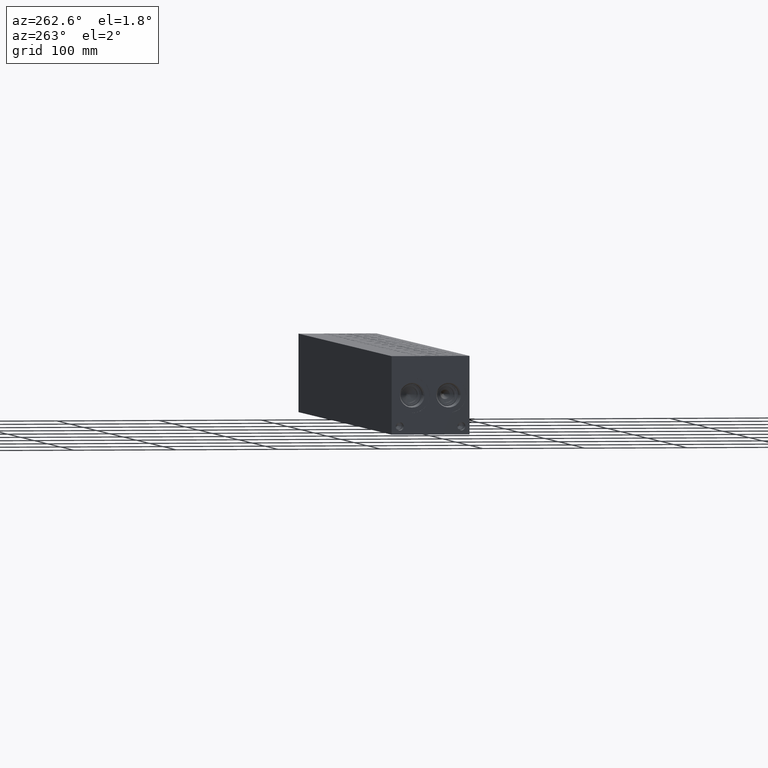
[diagram: clean part render]
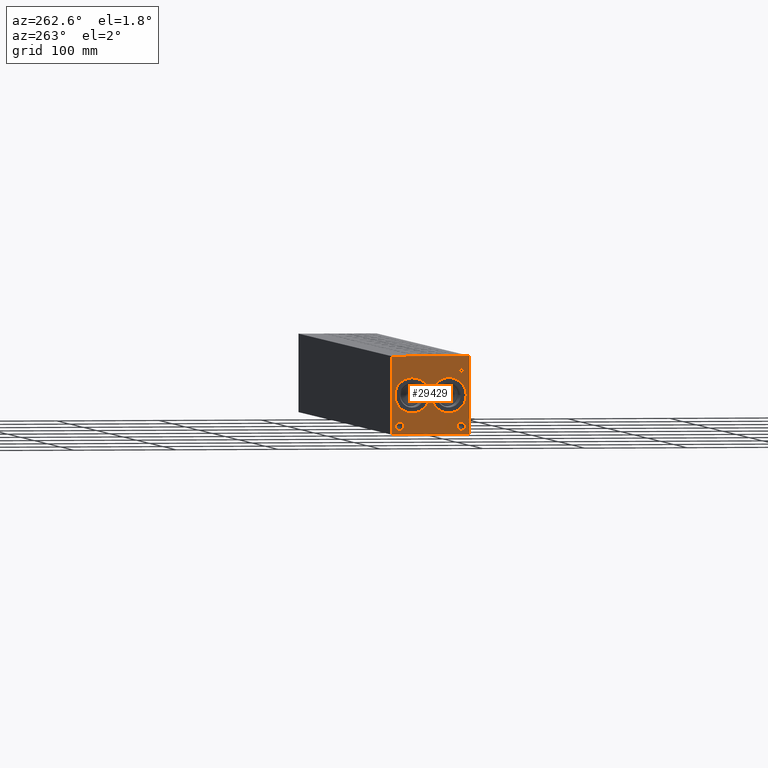
[diagram: same view with one face highlighted and labeled with its STEP entity id]
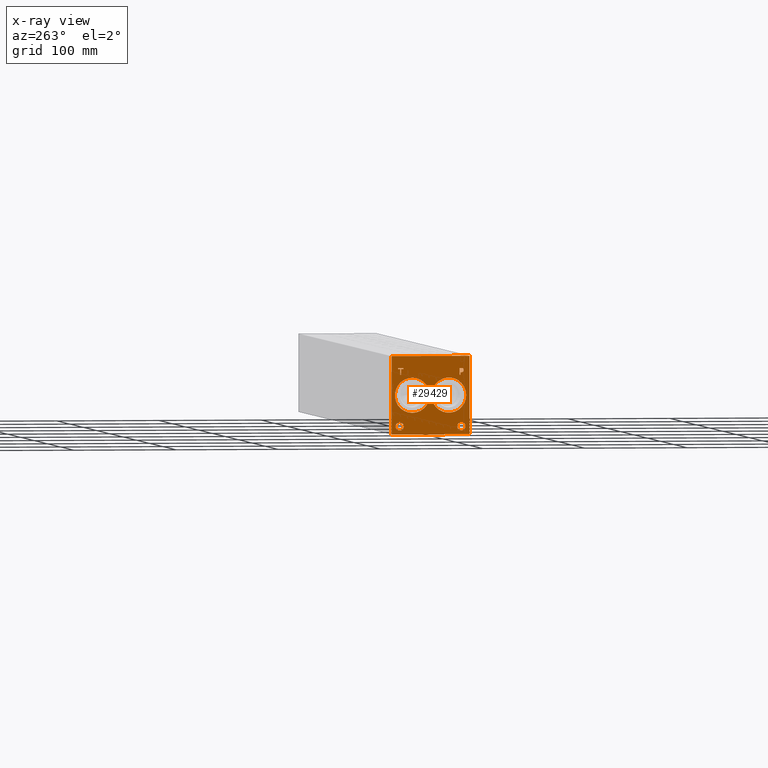
[diagram: x-ray of the same camera — body ghosted, the highlighted face saturated]
A machine part, auxiliary view. The second image highlights one B-rep face of the part: STEP entity #29429.
The next image is the same camera in x-ray: the body ghosted, the highlighted face saturated — about 0% of this face is hidden behind the body in this view.
In plain terms, the highlighted planar face has unit normal (-1, 0, 0).
Its self-contained STEP definition (entity closure, byte-faithful):
#973=CIRCLE('',#31109,3.9624);
#974=CIRCLE('',#31110,3.9624);
#975=CIRCLE('',#31111,3.9624);
#976=CIRCLE('',#31112,3.9624);
#977=CIRCLE('',#31113,17.0688);
#978=CIRCLE('',#31114,17.0688);
#979=CIRCLE('',#31115,17.0688);
#980=CIRCLE('',#31116,17.0688);
#2376=B_SPLINE_CURVE_WITH_KNOTS('',2,(#43577,#43578,#43579,#43580),
 .UNSPECIFIED.,.F.,.F.,(3,1,3),(0.,1.,2.),.UNSPECIFIED.);
#2378=B_SPLINE_CURVE_WITH_KNOTS('',2,(#43598,#43599,#43600,#43601),
 .UNSPECIFIED.,.F.,.F.,(3,1,3),(0.,1.,2.),.UNSPECIFIED.);
#2380=B_SPLINE_CURVE_WITH_KNOTS('',2,(#43647,#43648,#43649,#43650),
 .UNSPECIFIED.,.F.,.F.,(3,1,3),(0.,1.,2.),.UNSPECIFIED.);
#2382=B_SPLINE_CURVE_WITH_KNOTS('',2,(#43665,#43666,#43667,#43668),
 .UNSPECIFIED.,.F.,.F.,(3,1,3),(0.,1.,2.),.UNSPECIFIED.);
#2868=FACE_BOUND('',#4963,.T.);
#2869=FACE_BOUND('',#4964,.T.);
#2870=FACE_BOUND('',#4965,.T.);
#2871=FACE_BOUND('',#4966,.T.);
#2872=FACE_BOUND('',#4967,.T.);
#2873=FACE_BOUND('',#4968,.T.);
#3245=FACE_OUTER_BOUND('',#4962,.T.);
#4962=EDGE_LOOP('',(#20106,#20107,#20108,#20109));
#4963=EDGE_LOOP('',(#20110,#20111,#20112,#20113,#20114,#20115,#20116,#20117));
#4964=EDGE_LOOP('',(#20118,#20119));
#4965=EDGE_LOOP('',(#20120,#20121));
#4966=EDGE_LOOP('',(#20122,#20123));
#4967=EDGE_LOOP('',(#20124,#20125));
#4968=EDGE_LOOP('',(#20126,#20127,#20128,#20129,#20130,#20131,#20132,#20133,
#20134));
#6822=LINE('',#41204,#9273);
#7261=LINE('',#43427,#9712);
#7265=LINE('',#43435,#9716);
#7268=LINE('',#43441,#9719);
#7271=LINE('',#43447,#9722);
#7274=LINE('',#43453,#9725);
#7277=LINE('',#43459,#9728);
#7280=LINE('',#43465,#9731);
#7283=LINE('',#43470,#9734);
#7301=LINE('',#43610,#9752);
#7304=LINE('',#43616,#9755);
#7307=LINE('',#43622,#9758);
#7310=LINE('',#43628,#9761);
#7313=LINE('',#43634,#9764);
#7317=LINE('',#43676,#9768);
#7318=LINE('',#43678,#9769);
#7319=LINE('',#43679,#9770);
#9273=VECTOR('',#33611,10.);
#9712=VECTOR('',#34240,10.);
#9716=VECTOR('',#34246,10.);
#9719=VECTOR('',#34251,10.);
#9722=VECTOR('',#34256,10.);
#9725=VECTOR('',#34261,10.);
#9728=VECTOR('',#34266,10.);
#9731=VECTOR('',#34271,10.);
#9734=VECTOR('',#34276,10.);
#9752=VECTOR('',#34304,10.);
#9755=VECTOR('',#34309,10.);
#9758=VECTOR('',#34314,10.);
#9761=VECTOR('',#34319,10.);
#9764=VECTOR('',#34324,10.);
#9768=VECTOR('',#34332,10.);
#9769=VECTOR('',#34333,10.);
#9770=VECTOR('',#34334,10.);
#11710=VERTEX_POINT('',#41197);
#11713=VERTEX_POINT('',#41202);
#12377=VERTEX_POINT('',#43425);
#12378=VERTEX_POINT('',#43426);
#12381=VERTEX_POINT('',#43434);
#12383=VERTEX_POINT('',#43440);
#12385=VERTEX_POINT('',#43446);
#12387=VERTEX_POINT('',#43452);
#12389=VERTEX_POINT('',#43458);
#12391=VERTEX_POINT('',#43464);
#12407=VERTEX_POINT('',#43575);
#12408=VERTEX_POINT('',#43576);
#12411=VERTEX_POINT('',#43597);
#12413=VERTEX_POINT('',#43609);
#12415=VERTEX_POINT('',#43615);
#12417=VERTEX_POINT('',#43621);
#12419=VERTEX_POINT('',#43627);
#12421=VERTEX_POINT('',#43633);
#12423=VERTEX_POINT('',#43646);
#12425=VERTEX_POINT('',#43675);
#12426=VERTEX_POINT('',#43677);
#12427=VERTEX_POINT('',#43680);
#12428=VERTEX_POINT('',#43681);
#12429=VERTEX_POINT('',#43684);
#12430=VERTEX_POINT('',#43685);
#12431=VERTEX_POINT('',#43688);
#12432=VERTEX_POINT('',#43689);
#12433=VERTEX_POINT('',#43692);
#12434=VERTEX_POINT('',#43693);
#14785=EDGE_CURVE('',#11710,#11713,#6822,.T.);
#15498=EDGE_CURVE('',#12377,#12378,#7261,.T.);
#15502=EDGE_CURVE('',#12381,#12377,#7265,.T.);
#15505=EDGE_CURVE('',#12383,#12381,#7268,.T.);
#15508=EDGE_CURVE('',#12385,#12383,#7271,.T.);
#15511=EDGE_CURVE('',#12387,#12385,#7274,.T.);
#15514=EDGE_CURVE('',#12389,#12387,#7277,.T.);
#15517=EDGE_CURVE('',#12391,#12389,#7280,.T.);
#15520=EDGE_CURVE('',#12378,#12391,#7283,.T.);
#15543=EDGE_CURVE('',#12407,#12408,#2376,.T.);
#15547=EDGE_CURVE('',#12411,#12407,#2378,.T.);
#15550=EDGE_CURVE('',#12413,#12411,#7301,.T.);
#15553=EDGE_CURVE('',#12415,#12413,#7304,.T.);
#15556=EDGE_CURVE('',#12417,#12415,#7307,.T.);
#15559=EDGE_CURVE('',#12419,#12417,#7310,.T.);
#15562=EDGE_CURVE('',#12421,#12419,#7313,.T.);
#15565=EDGE_CURVE('',#12423,#12421,#2380,.T.);
#15568=EDGE_CURVE('',#12408,#12423,#2382,.T.);
#15570=EDGE_CURVE('',#12425,#11710,#7317,.T.);
#15571=EDGE_CURVE('',#12426,#11713,#7318,.T.);
#15572=EDGE_CURVE('',#12425,#12426,#7319,.T.);
#15573=EDGE_CURVE('',#12427,#12428,#973,.T.);
#15574=EDGE_CURVE('',#12428,#12427,#974,.T.);
#15575=EDGE_CURVE('',#12429,#12430,#975,.T.);
#15576=EDGE_CURVE('',#12430,#12429,#976,.T.);
#15577=EDGE_CURVE('',#12431,#12432,#977,.T.);
#15578=EDGE_CURVE('',#12432,#12431,#978,.T.);
#15579=EDGE_CURVE('',#12433,#12434,#979,.T.);
#15580=EDGE_CURVE('',#12434,#12433,#980,.T.);
#20106=ORIENTED_EDGE('',*,*,#15570,.T.);
#20107=ORIENTED_EDGE('',*,*,#14785,.T.);
#20108=ORIENTED_EDGE('',*,*,#15571,.F.);
#20109=ORIENTED_EDGE('',*,*,#15572,.F.);
#20110=ORIENTED_EDGE('',*,*,#15498,.T.);
#20111=ORIENTED_EDGE('',*,*,#15520,.T.);
#20112=ORIENTED_EDGE('',*,*,#15517,.T.);
#20113=ORIENTED_EDGE('',*,*,#15514,.T.);
#20114=ORIENTED_EDGE('',*,*,#15511,.T.);
#20115=ORIENTED_EDGE('',*,*,#15508,.T.);
#20116=ORIENTED_EDGE('',*,*,#15505,.T.);
#20117=ORIENTED_EDGE('',*,*,#15502,.T.);
#20118=ORIENTED_EDGE('',*,*,#15573,.T.);
#20119=ORIENTED_EDGE('',*,*,#15574,.T.);
#20120=ORIENTED_EDGE('',*,*,#15575,.T.);
#20121=ORIENTED_EDGE('',*,*,#15576,.T.);
#20122=ORIENTED_EDGE('',*,*,#15577,.T.);
#20123=ORIENTED_EDGE('',*,*,#15578,.T.);
#20124=ORIENTED_EDGE('',*,*,#15579,.T.);
#20125=ORIENTED_EDGE('',*,*,#15580,.T.);
#20126=ORIENTED_EDGE('',*,*,#15543,.T.);
#20127=ORIENTED_EDGE('',*,*,#15568,.T.);
#20128=ORIENTED_EDGE('',*,*,#15565,.T.);
#20129=ORIENTED_EDGE('',*,*,#15562,.T.);
#20130=ORIENTED_EDGE('',*,*,#15559,.T.);
#20131=ORIENTED_EDGE('',*,*,#15556,.T.);
#20132=ORIENTED_EDGE('',*,*,#15553,.T.);
#20133=ORIENTED_EDGE('',*,*,#15550,.T.);
#20134=ORIENTED_EDGE('',*,*,#15547,.T.);
#27784=PLANE('',#31108);
#29429=ADVANCED_FACE('',(#3245,#2868,#2869,#2870,#2871,#2872,#2873),#27784,
 .T.);
#31108=AXIS2_PLACEMENT_3D('',#43674,#34330,#34331);
#31109=AXIS2_PLACEMENT_3D('',#43682,#34335,#34336);
#31110=AXIS2_PLACEMENT_3D('',#43683,#34337,#34338);
#31111=AXIS2_PLACEMENT_3D('',#43686,#34339,#34340);
#31112=AXIS2_PLACEMENT_3D('',#43687,#34341,#34342);
#31113=AXIS2_PLACEMENT_3D('',#43690,#34343,#34344);
#31114=AXIS2_PLACEMENT_3D('',#43691,#34345,#34346);
#31115=AXIS2_PLACEMENT_3D('',#43694,#34347,#34348);
#31116=AXIS2_PLACEMENT_3D('',#43695,#34349,#34350);
#33611=DIRECTION('',(0.,0.,1.));
#34240=DIRECTION('',(0.,1.,1.05244112384329E-14));
#34246=DIRECTION('',(0.,3.17280044688052E-15,-1.));
#34251=DIRECTION('',(0.,1.,4.16909044227778E-15));
#34256=DIRECTION('',(0.,0.,-1.));
#34261=DIRECTION('',(0.,-1.,-3.47984565141734E-15));
#34266=DIRECTION('',(0.,0.,1.));
#34271=DIRECTION('',(0.,1.,4.16909044227779E-15));
#34276=DIRECTION('',(0.,-3.17280044688052E-15,1.));
#34304=DIRECTION('',(0.,-1.,0.));
#34309=DIRECTION('',(0.,-3.14708893596576E-15,1.));
#34314=DIRECTION('',(0.,1.,0.));
#34319=DIRECTION('',(0.,2.81413604853751E-15,-1.));
#34324=DIRECTION('',(0.,1.,0.));
#34330=DIRECTION('center_axis',(-1.,0.,0.));
#34331=DIRECTION('ref_axis',(0.,-1.,0.));
#34332=DIRECTION('',(0.,-1.,0.));
#34333=DIRECTION('',(0.,-1.,0.));
#34334=DIRECTION('',(0.,0.,1.));
#34335=DIRECTION('center_axis',(1.,0.,0.));
#34336=DIRECTION('ref_axis',(0.,1.,0.));
#34337=DIRECTION('center_axis',(1.,0.,0.));
#34338=DIRECTION('ref_axis',(0.,1.,0.));
#34339=DIRECTION('center_axis',(1.,0.,0.));
#34340=DIRECTION('ref_axis',(0.,1.,0.));
#34341=DIRECTION('center_axis',(1.,0.,0.));
#34342=DIRECTION('ref_axis',(0.,1.,0.));
#34343=DIRECTION('center_axis',(1.,0.,0.));
#34344=DIRECTION('ref_axis',(0.,1.,0.));
#34345=DIRECTION('center_axis',(1.,0.,0.));
#34346=DIRECTION('ref_axis',(0.,1.,0.));
#34347=DIRECTION('center_axis',(1.,0.,0.));
#34348=DIRECTION('ref_axis',(0.,0.,1.));
#34349=DIRECTION('center_axis',(1.,0.,0.));
#34350=DIRECTION('ref_axis',(0.,0.,1.));
#41197=CARTESIAN_POINT('',(0.,0.,0.));
#41202=CARTESIAN_POINT('',(0.,0.,76.2));
#41204=CARTESIAN_POINT('',(0.,0.,0.));
#43425=CARTESIAN_POINT('',(0.,66.880834728547,57.94375));
#43426=CARTESIAN_POINT('',(0.,67.7247569200865,57.94375));
#43427=CARTESIAN_POINT('',(0.,71.5404173642732,57.94375));
#43434=CARTESIAN_POINT('',(0.,66.880834728547,63.5424533194815));
#43435=CARTESIAN_POINT('',(0.,66.8808347285471,31.7712266597408));
#43440=CARTESIAN_POINT('',(0.,64.7504457816119,63.5424533194815));
#43441=CARTESIAN_POINT('',(0.,70.4752228908058,63.5424533194816));
#43446=CARTESIAN_POINT('',(0.,64.7504457816119,64.2937499046325));
#43447=CARTESIAN_POINT('',(0.,64.7504457816119,32.1468749523163));
#43452=CARTESIAN_POINT('',(0.,69.8551458670216,64.2937499046326));
#43453=CARTESIAN_POINT('',(0.,73.0275729335107,64.2937499046326));
#43458=CARTESIAN_POINT('',(0.,69.8551458670216,63.5424533194815));
#43459=CARTESIAN_POINT('',(0.,69.8551458670215,31.7712266597408));
#43464=CARTESIAN_POINT('',(0.,67.7247569200865,63.5424533194815));
#43465=CARTESIAN_POINT('',(0.,71.9623784600431,63.5424533194816));
#43470=CARTESIAN_POINT('',(0.,67.7247569200866,28.971875));
#43575=CARTESIAN_POINT('',(0.,6.41818279764059,63.8975181439707));
#43576=CARTESIAN_POINT('',(0.,5.661740345468,62.3794873726039));
#43577=CARTESIAN_POINT('Ctrl Pts',(0.,6.41818279764059,63.8975181439707));
#43578=CARTESIAN_POINT('Ctrl Pts',(0.,6.06311797315141,63.6556623939563));
#43579=CARTESIAN_POINT('Ctrl Pts',(0.,5.66174034546799,62.9095116758269));
#43580=CARTESIAN_POINT('Ctrl Pts',(0.,5.661740345468,62.3794873726039));
#43597=CARTESIAN_POINT('',(0.,8.08029784561167,64.2937499046326));
#43598=CARTESIAN_POINT('Ctrl Pts',(0.,8.08029784561167,64.2937499046326));
#43599=CARTESIAN_POINT('Ctrl Pts',(0.,7.51425247323762,64.2937499046326));
#43600=CARTESIAN_POINT('Ctrl Pts',(0.,6.72178895191395,64.1084986918556));
#43601=CARTESIAN_POINT('Ctrl Pts',(0.,6.41818279764059,63.8975181439707));
#43609=CARTESIAN_POINT('',(0.,9.67551662230219,64.2937499046326));
#43610=CARTESIAN_POINT('',(0.,42.9377583111511,64.2937499046326));
#43615=CARTESIAN_POINT('',(0.,9.67551662230221,57.94375));
#43616=CARTESIAN_POINT('',(0.,9.6755166223023,28.9718749999999));
#43621=CARTESIAN_POINT('',(0.,8.83159443076271,57.94375));
#43622=CARTESIAN_POINT('',(0.,42.5157972153814,57.94375));
#43627=CARTESIAN_POINT('',(0.,8.83159443076271,60.3108488299279));
#43628=CARTESIAN_POINT('',(0.,8.83159443076279,30.1554244149638));
#43633=CARTESIAN_POINT('',(0.,8.11631891476276,60.3108488299279));
#43634=CARTESIAN_POINT('',(0.,42.1581594573814,60.3108488299279));
#43646=CARTESIAN_POINT('',(0.,6.21749398379889,60.9695198086904));
#43647=CARTESIAN_POINT('Ctrl Pts',(0.,6.21749398379889,60.9695198086904));
#43648=CARTESIAN_POINT('Ctrl Pts',(0.,6.54682947318016,60.6453301863307));
#43649=CARTESIAN_POINT('Ctrl Pts',(0.,7.4370644679139,60.3108488299279));
#43650=CARTESIAN_POINT('Ctrl Pts',(0.,8.11631891476276,60.3108488299279));
#43665=CARTESIAN_POINT('Ctrl Pts',(0.,5.661740345468,62.3794873726039));
#43666=CARTESIAN_POINT('Ctrl Pts',(0.,5.661740345468,61.9678180108774));
#43667=CARTESIAN_POINT('Ctrl Pts',(0.,5.95505476569819,61.2268131597695));
#43668=CARTESIAN_POINT('Ctrl Pts',(0.,6.21749398379889,60.9695198086904));
#43674=CARTESIAN_POINT('Origin',(0.,76.2,0.));
#43675=CARTESIAN_POINT('',(0.,76.2,0.));
#43676=CARTESIAN_POINT('',(0.,76.2,0.));
#43677=CARTESIAN_POINT('',(0.,76.2,76.2));
#43678=CARTESIAN_POINT('',(0.,76.2,76.2));
#43679=CARTESIAN_POINT('',(0.,76.2,0.));
#43680=CARTESIAN_POINT('',(0.,11.8872,7.92480000000001));
#43681=CARTESIAN_POINT('',(0.,3.9624,7.92480000000001));
#43682=CARTESIAN_POINT('Origin',(0.,7.9248,7.92480000000001));
#43683=CARTESIAN_POINT('Origin',(0.,7.9248,7.92480000000001));
#43684=CARTESIAN_POINT('',(0.,72.2376,7.92480000000001));
#43685=CARTESIAN_POINT('',(0.,64.3128,7.92480000000001));
#43686=CARTESIAN_POINT('Origin',(0.,68.2752,7.92480000000001));
#43687=CARTESIAN_POINT('Origin',(0.,68.2752,7.92480000000001));
#43688=CARTESIAN_POINT('',(0.,37.3126,38.1));
#43689=CARTESIAN_POINT('',(0.,3.175,38.1));
#43690=CARTESIAN_POINT('Origin',(0.,20.2438,38.1));
#43691=CARTESIAN_POINT('Origin',(0.,20.2438,38.1));
#43692=CARTESIAN_POINT('',(0.,55.9562,55.1688));
#43693=CARTESIAN_POINT('',(0.,55.9562,21.0312));
#43694=CARTESIAN_POINT('Origin',(0.,55.9562,38.1));
#43695=CARTESIAN_POINT('Origin',(0.,55.9562,38.1));